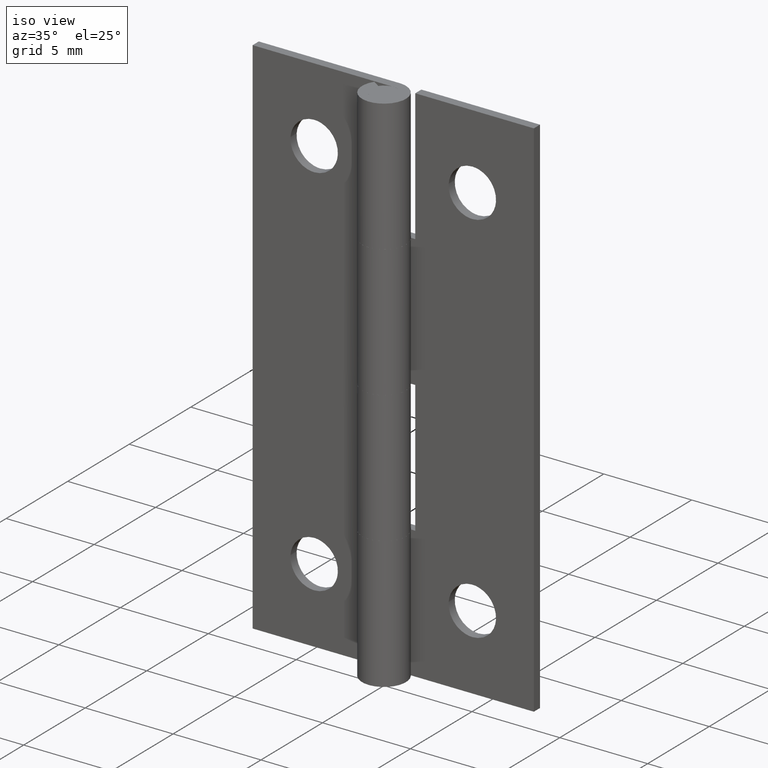
[diagram: clean part render]
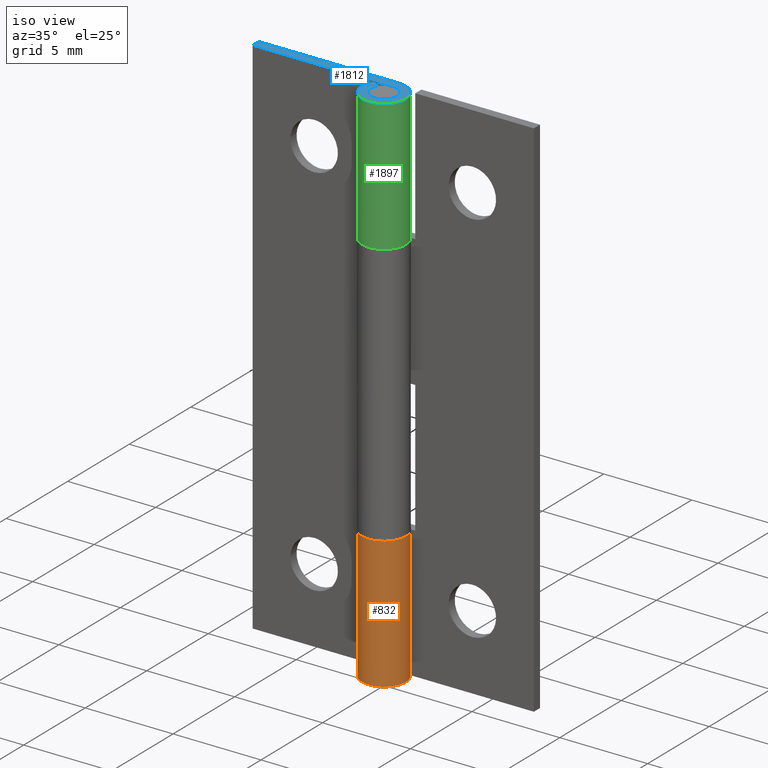
[diagram: same view with three faces highlighted in distinct colors, each labeled with its STEP entity id]
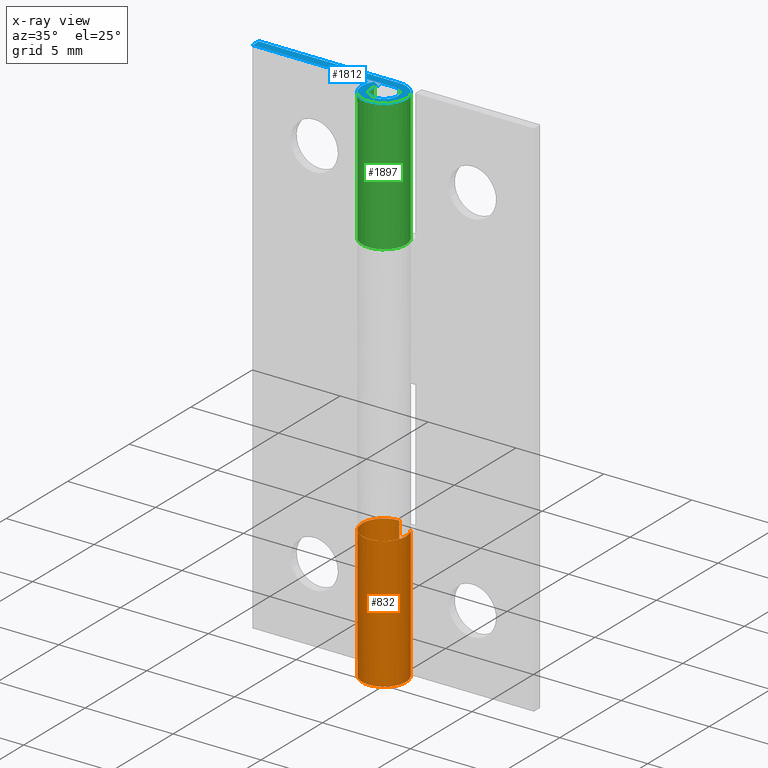
[diagram: x-ray of the same camera — body ghosted, the three highlighted faces saturated]
A machine part, iso view with three faces highlighted in distinct colors.
The next image is the same camera in x-ray (body ghosted, the three faces saturated) — at least one of them is partly hidden behind the body in this view.
Their STEP definitions:

[orange] entity #832 — the highlighted face is a freeform B-spline surface patch.
#535=CARTESIAN_POINT('',(-2.296137E-016,1.250000000000000,7.500000000000000));
#536=VERTEX_POINT('',#535);
#542=CARTESIAN_POINT('',(1.036746278707614,0.698324533140512,7.500000000000000));
#543=VERTEX_POINT('',#542);
#544=CARTESIAN_POINT('',(0.0,1.250000000000000,7.500000000000000));
#545=CARTESIAN_POINT('',(-0.976445220318015,1.250000000000000,7.500000000000000));
#546=CARTESIAN_POINT('',(-1.212821022763166,0.302597367377360,7.500000000000000));
#547=CARTESIAN_POINT('',(-1.449196825208316,-0.644805265245280,7.500000000000000));
#548=CARTESIAN_POINT('',(-0.587194317740882,-1.103495733210065,7.500000000000000));
#549=CARTESIAN_POINT('',(0.274808189726552,-1.562186201174852,7.500000000000000));
#550=CARTESIAN_POINT('',(0.928527495263428,-0.836861213427784,7.500000000000000));
#551=CARTESIAN_POINT('',(1.582246800800304,-0.111536225680718,7.500000000000000));
#552=CARTESIAN_POINT('',(1.036746278707614,0.698324533140512,7.500000000000000));
#560=(BOUNDED_CURVE()B_SPLINE_CURVE(2,(#544,#545,#546,#547,#548,#549,#550,#551,#552),.UNSPECIFIED.,.F.,.U.)B_SPLINE_CURVE_WITH_KNOTS((3,2,2,2,3),(0.0,0.250000000000000,0.500000000000000,0.750000000000000,1.0),.UNSPECIFIED.)CURVE()GEOMETRIC_REPRESENTATION_ITEM()RATIONAL_B_SPLINE_CURVE((1.0,0.788060243224428,1.0,0.788060243224428,1.0,0.788060243224428,1.0,0.788060243224428,1.0))REPRESENTATION_ITEM(''));
#561=EDGE_CURVE('',#536,#543,#560,.T.);
#695=CARTESIAN_POINT('',(-2.296137E-016,1.250000000000000,0.0));
#696=VERTEX_POINT('',#695);
#739=CARTESIAN_POINT('',(1.036746278707614,0.698324533140512,0.0));
#740=VERTEX_POINT('',#739);
#746=CARTESIAN_POINT('',(1.036746278707614,0.698324533140513,0.0));
#747=CARTESIAN_POINT('',(1.582246800800305,-0.111536225680718,0.0));
#748=CARTESIAN_POINT('',(0.928527495263428,-0.836861213427785,0.0));
#749=CARTESIAN_POINT('',(0.274808189726552,-1.562186201174850,0.0));
#750=CARTESIAN_POINT('',(-0.587194317740881,-1.103495733210066,0.0));
#751=CARTESIAN_POINT('',(-1.449196825208317,-0.644805265245280,0.0));
#752=CARTESIAN_POINT('',(-1.212821022763166,0.302597367377361,0.0));
#753=CARTESIAN_POINT('',(-0.976445220318015,1.250000000000000,0.0));
#754=CARTESIAN_POINT('',(0.0,1.250000000000000,0.0));
#762=(BOUNDED_CURVE()B_SPLINE_CURVE(2,(#746,#747,#748,#749,#750,#751,#752,#753,#754),.UNSPECIFIED.,.F.,.U.)B_SPLINE_CURVE_WITH_KNOTS((3,2,2,2,3),(0.0,0.250000000000000,0.500000000000000,0.750000000000000,1.0),.UNSPECIFIED.)CURVE()GEOMETRIC_REPRESENTATION_ITEM()RATIONAL_B_SPLINE_CURVE((1.0,0.788060243224427,1.0,0.788060243224427,1.0,0.788060243224427,1.0,0.788060243224427,1.0))REPRESENTATION_ITEM(''));
#763=EDGE_CURVE('',#740,#696,#762,.T.);
#796=CARTESIAN_POINT('',(0.010908169372966,1.249952403830214,7.687500000000001));
#797=CARTESIAN_POINT('',(0.010908169372966,1.249952403830214,-0.192187500000000));
#798=CARTESIAN_POINT('',(-1.541868327552402,1.263503279027477,7.687500000000000));
#799=CARTESIAN_POINT('',(-1.541868327552402,1.263503279027477,-0.192187500000000));
#800=CARTESIAN_POINT('',(-1.223435315165517,-0.256331873956110,7.687500000000001));
#801=CARTESIAN_POINT('',(-1.223435315165517,-0.256331873956110,-0.192187500000000));
#802=CARTESIAN_POINT('',(-0.905002302778632,-1.776167026939698,7.687500000000000));
#803=CARTESIAN_POINT('',(-0.905002302778632,-1.776167026939698,-0.192187500000000));
#804=CARTESIAN_POINT('',(0.511740393157615,-1.140448056691267,7.687500000000001));
#805=CARTESIAN_POINT('',(0.511740393157615,-1.140448056691267,-0.192187500000000));
#806=CARTESIAN_POINT('',(1.928483089093864,-0.504729086442838,7.687500000000000));
#807=CARTESIAN_POINT('',(1.928483089093864,-0.504729086442838,-0.192187500000000));
#808=CARTESIAN_POINT('',(1.004821075771522,0.743528483439176,7.687500000000001));
#809=CARTESIAN_POINT('',(1.004821075771522,0.743528483439176,-0.192187500000000));
#817=(BOUNDED_SURFACE()B_SPLINE_SURFACE(1,2,((#796,#798,#800,#802,#804,#806,#808),(#797,#799,#801,#803,#805,#807,#809)),.UNSPECIFIED.,.F.,.F.,.U.)B_SPLINE_SURFACE_WITH_KNOTS((2,2),(3,2,2,3),(0.0,7.879687500000002),(0.0,2.393810539874266,4.787621079748531,7.181431619622797),.UNSPECIFIED.)GEOMETRIC_REPRESENTATION_ITEM()RATIONAL_B_SPLINE_SURFACE(((1.0,0.627057105746662,1.0,0.627057105746662,1.0,0.627057105746662,1.0),(1.0,0.627057105746662,1.0,0.627057105746662,1.0,0.627057105746662,1.0)))REPRESENTATION_ITEM('')SURFACE());
#818=ORIENTED_EDGE('',*,*,#561,.F.);
#819=CARTESIAN_POINT('',(-2.296137E-016,1.250000000000000,7.500000000000000));
#820=CARTESIAN_POINT('',(-2.296137E-016,1.250000000000000,0.0));
#821=QUASI_UNIFORM_CURVE('',1,(#819,#820),.UNSPECIFIED.,.F.,.U.);
#822=EDGE_CURVE('',#536,#696,#821,.T.);
#823=ORIENTED_EDGE('',*,*,#822,.T.);
#824=ORIENTED_EDGE('',*,*,#763,.F.);
#825=CARTESIAN_POINT('',(1.036746278707614,0.698324533140512,7.500000000000000));
#826=CARTESIAN_POINT('',(1.036746278707614,0.698324533140512,0.0));
#827=QUASI_UNIFORM_CURVE('',1,(#825,#826),.UNSPECIFIED.,.F.,.U.);
#828=EDGE_CURVE('',#543,#740,#827,.T.);
#829=ORIENTED_EDGE('',*,*,#828,.F.);
#830=EDGE_LOOP('',(#818,#823,#824,#829));
#831=FACE_OUTER_BOUND('',#830,.T.);
#832=ADVANCED_FACE('',(#831),#817,.T.);

[blue] entity #1812 — the highlighted face is a freeform B-spline surface patch.
#1735=CARTESIAN_POINT('',(-8.462023407233360,1.374818699013491,30.0));
#1736=CARTESIAN_POINT('',(1.711741876773793,1.374818699013491,30.0));
#1737=CARTESIAN_POINT('',(-8.462023407233360,-1.373691716124394,30.0));
#1738=CARTESIAN_POINT('',(1.711741876773793,-1.373691716124394,30.0));
#1739=B_SPLINE_SURFACE_WITH_KNOTS('',1,1,((#1735,#1737),(#1736,#1738)),.UNSPECIFIED.,.F.,.F.,.U.,(2,2),(2,2),(0.0,10.173765284007150),(0.0,2.748510415137884),.UNSPECIFIED.);
#1740=CARTESIAN_POINT('',(-8.0,0.750000000000000,30.0));
#1741=VERTEX_POINT('',#1740);
#1742=CARTESIAN_POINT('',(4.592274E-017,0.750000000000000,30.0));
#1743=VERTEX_POINT('',#1742);
#1744=CARTESIAN_POINT('',(-8.0,0.750000000000000,30.0));
#1745=CARTESIAN_POINT('',(4.592274E-017,0.750000000000000,30.0));
#1746=QUASI_UNIFORM_CURVE('',1,(#1744,#1745),.UNSPECIFIED.,.F.,.U.);
#1747=EDGE_CURVE('',#1741,#1743,#1746,.T.);
#1748=ORIENTED_EDGE('',*,*,#1747,.T.);
#1749=CARTESIAN_POINT('',(-0.621369455316239,0.420000000000000,30.0));
#1750=VERTEX_POINT('',#1749);
#1751=CARTESIAN_POINT('',(-0.621369455316239,0.420000000000000,30.0));
#1752=CARTESIAN_POINT('',(-0.949591762138205,-0.065588847649057,30.000000000000007));
#1753=CARTESIAN_POINT('',(-0.557725015508411,-0.501440731369265,30.0));
#1754=CARTESIAN_POINT('',(-0.165858268878616,-0.937292615089473,30.000000000000007));
#1755=CARTESIAN_POINT('',(0.351781181986757,-0.662382064974589,30.0));
#1756=CARTESIAN_POINT('',(0.869420632852130,-0.387471514859705,30.000000000000007));
#1757=CARTESIAN_POINT('',(0.727765947517106,0.181264242570147,30.0));
#1758=CARTESIAN_POINT('',(0.586111262182082,0.750000000000000,30.000000000000007));
#1759=CARTESIAN_POINT('',(0.0,0.750000000000000,30.0));
#1767=(BOUNDED_CURVE()B_SPLINE_CURVE(2,(#1751,#1752,#1753,#1754,#1755,#1756,#1757,#1758,#1759),.UNSPECIFIED.,.F.,.U.)B_SPLINE_CURVE_WITH_KNOTS((3,2,2,2,3),(0.0,0.250000000000000,0.500000000000000,0.750000000000000,1.0),.UNSPECIFIED.)CURVE()GEOMETRIC_REPRESENTATION_ITEM()RATIONAL_B_SPLINE_CURVE((1.0,0.787935802194632,1.0,0.787935802194632,1.0,0.787935802194632,1.0,0.787935802194632,1.0))REPRESENTATION_ITEM(''));
#1768=EDGE_CURVE('',#1750,#1743,#1767,.T.);
#1769=ORIENTED_EDGE('',*,*,#1768,.F.);
#1770=CARTESIAN_POINT('',(-1.035615758860400,0.700000000000000,30.0));
#1771=VERTEX_POINT('',#1770);
#1772=CARTESIAN_POINT('',(-0.621369455316239,0.420000000000000,30.0));
#1773=CARTESIAN_POINT('',(-1.035615758860400,0.700000000000000,30.0));
#1774=QUASI_UNIFORM_CURVE('',1,(#1772,#1773),.UNSPECIFIED.,.F.,.U.);
#1775=EDGE_CURVE('',#1750,#1771,#1774,.T.);
#1776=ORIENTED_EDGE('',*,*,#1775,.T.);
#1777=CARTESIAN_POINT('',(7.653790E-017,1.250000000000000,30.0));
#1778=VERTEX_POINT('',#1777);
#1779=CARTESIAN_POINT('',(-1.035615758860399,0.700000000000000,30.0));
#1780=CARTESIAN_POINT('',(-1.582652936897009,-0.109314746081764,29.999999999999996));
#1781=CARTESIAN_POINT('',(-0.929541692514017,-0.835734552282109,30.0));
#1782=CARTESIAN_POINT('',(-0.276430448131026,-1.562154358482454,29.999999999999996));
#1783=CARTESIAN_POINT('',(0.586301969977929,-1.103970108290981,30.0));
#1784=CARTESIAN_POINT('',(1.449034388086883,-0.645785858099509,29.999999999999996));
#1785=CARTESIAN_POINT('',(1.212943245861843,0.302107070950246,30.0));
#1786=CARTESIAN_POINT('',(0.976852103636803,1.250000000000000,29.999999999999996));
#1787=CARTESIAN_POINT('',(0.0,1.250000000000000,30.0));
#1795=(BOUNDED_CURVE()B_SPLINE_CURVE(2,(#1779,#1780,#1781,#1782,#1783,#1784,#1785,#1786,#1787),.UNSPECIFIED.,.F.,.U.)B_SPLINE_CURVE_WITH_KNOTS((3,2,2,2,3),(0.0,0.250000000000000,0.500000000000000,0.750000000000000,1.0),.UNSPECIFIED.)CURVE()GEOMETRIC_REPRESENTATION_ITEM()RATIONAL_B_SPLINE_CURVE((1.0,0.787935802194632,1.0,0.787935802194632,1.0,0.787935802194632,1.0,0.787935802194632,1.0))REPRESENTATION_ITEM(''));
#1796=EDGE_CURVE('',#1771,#1778,#1795,.T.);
#1797=ORIENTED_EDGE('',*,*,#1796,.T.);
#1798=CARTESIAN_POINT('',(-8.0,1.250000000000000,30.0));
#1799=VERTEX_POINT('',#1798);
#1800=CARTESIAN_POINT('',(7.653790E-017,1.250000000000000,30.0));
#1801=CARTESIAN_POINT('',(-8.0,1.250000000000000,30.0));
#1802=QUASI_UNIFORM_CURVE('',1,(#1800,#1801),.UNSPECIFIED.,.F.,.U.);
#1803=EDGE_CURVE('',#1778,#1799,#1802,.T.);
#1804=ORIENTED_EDGE('',*,*,#1803,.T.);
#1805=CARTESIAN_POINT('',(-8.0,1.250000000000000,30.0));
#1806=CARTESIAN_POINT('',(-8.0,0.750000000000000,30.0));
#1807=QUASI_UNIFORM_CURVE('',1,(#1805,#1806),.UNSPECIFIED.,.F.,.U.);
#1808=EDGE_CURVE('',#1799,#1741,#1807,.T.);
#1809=ORIENTED_EDGE('',*,*,#1808,.T.);
#1810=EDGE_LOOP('',(#1748,#1769,#1776,#1797,#1804,#1809));
#1811=FACE_OUTER_BOUND('',#1810,.T.);
#1812=ADVANCED_FACE('',(#1811),#1739,.F.);

[green] entity #1897 — the highlighted face is a freeform B-spline surface patch.
#1502=CARTESIAN_POINT('',(0.0,1.249999999999972,22.500000000000000));
#1503=VERTEX_POINT('',#1502);
#1509=CARTESIAN_POINT('',(-1.035615758860400,0.700000000000000,22.500000000000000));
#1510=VERTEX_POINT('',#1509);
#1511=CARTESIAN_POINT('',(0.0,1.250000000000000,22.500000000000000));
#1512=CARTESIAN_POINT('',(0.976852103636802,1.250000000000000,22.499999999999993));
#1513=CARTESIAN_POINT('',(1.212943245861843,0.302107070950246,22.500000000000000));
#1514=CARTESIAN_POINT('',(1.449034388086884,-0.645785858099508,22.499999999999993));
#1515=CARTESIAN_POINT('',(0.586301969977929,-1.103970108290981,22.500000000000000));
#1516=CARTESIAN_POINT('',(-0.276430448131025,-1.562154358482454,22.499999999999993));
#1517=CARTESIAN_POINT('',(-0.929541692514017,-0.835734552282109,22.500000000000000));
#1518=CARTESIAN_POINT('',(-1.582652936897008,-0.109314746081764,22.499999999999993));
#1519=CARTESIAN_POINT('',(-1.035615758860399,0.699999999999999,22.500000000000000));
#1527=(BOUNDED_CURVE()B_SPLINE_CURVE(2,(#1511,#1512,#1513,#1514,#1515,#1516,#1517,#1518,#1519),.UNSPECIFIED.,.F.,.U.)B_SPLINE_CURVE_WITH_KNOTS((3,2,2,2,3),(0.0,0.250000000000000,0.500000000000000,0.750000000000000,1.0),.UNSPECIFIED.)CURVE()GEOMETRIC_REPRESENTATION_ITEM()RATIONAL_B_SPLINE_CURVE((1.0,0.787935802194632,1.0,0.787935802194632,1.0,0.787935802194632,1.0,0.787935802194632,1.0))REPRESENTATION_ITEM(''));
#1528=EDGE_CURVE('',#1503,#1510,#1527,.T.);
#1770=CARTESIAN_POINT('',(-1.035615758860400,0.700000000000000,30.0));
#1771=VERTEX_POINT('',#1770);
#1777=CARTESIAN_POINT('',(7.653790E-017,1.250000000000000,30.0));
#1778=VERTEX_POINT('',#1777);
#1779=CARTESIAN_POINT('',(-1.035615758860399,0.700000000000000,30.0));
#1780=CARTESIAN_POINT('',(-1.582652936897009,-0.109314746081764,29.999999999999996));
#1781=CARTESIAN_POINT('',(-0.929541692514017,-0.835734552282109,30.0));
#1782=CARTESIAN_POINT('',(-0.276430448131026,-1.562154358482454,29.999999999999996));
#1783=CARTESIAN_POINT('',(0.586301969977929,-1.103970108290981,30.0));
#1784=CARTESIAN_POINT('',(1.449034388086883,-0.645785858099509,29.999999999999996));
#1785=CARTESIAN_POINT('',(1.212943245861843,0.302107070950246,30.0));
#1786=CARTESIAN_POINT('',(0.976852103636803,1.250000000000000,29.999999999999996));
#1787=CARTESIAN_POINT('',(0.0,1.250000000000000,30.0));
#1795=(BOUNDED_CURVE()B_SPLINE_CURVE(2,(#1779,#1780,#1781,#1782,#1783,#1784,#1785,#1786,#1787),.UNSPECIFIED.,.F.,.U.)B_SPLINE_CURVE_WITH_KNOTS((3,2,2,2,3),(0.0,0.250000000000000,0.500000000000000,0.750000000000000,1.0),.UNSPECIFIED.)CURVE()GEOMETRIC_REPRESENTATION_ITEM()RATIONAL_B_SPLINE_CURVE((1.0,0.787935802194632,1.0,0.787935802194632,1.0,0.787935802194632,1.0,0.787935802194632,1.0))REPRESENTATION_ITEM(''));
#1796=EDGE_CURVE('',#1771,#1778,#1795,.T.);
#1861=CARTESIAN_POINT('',(-1.004821075771521,0.743528483439176,30.187500000000000));
#1862=CARTESIAN_POINT('',(-1.004821075771521,0.743528483439176,22.307812500000001));
#1863=CARTESIAN_POINT('',(-1.950809181486082,-0.534901068653333,30.187500000000000));
#1864=CARTESIAN_POINT('',(-1.950809181486082,-0.534901068653333,22.307812500000001));
#1865=CARTESIAN_POINT('',(-0.485064798854316,-1.152046935203779,30.187500000000000));
#1866=CARTESIAN_POINT('',(-0.485064798854316,-1.152046935203779,22.307812500000001));
#1867=CARTESIAN_POINT('',(0.980679583777450,-1.769192801754226,30.187500000000000));
#1868=CARTESIAN_POINT('',(0.980679583777450,-1.769192801754226,22.307812500000001));
#1869=CARTESIAN_POINT('',(1.234036391396717,-0.199133585084404,30.187500000000000));
#1870=CARTESIAN_POINT('',(1.234036391396717,-0.199133585084404,22.307812500000001));
#1871=CARTESIAN_POINT('',(1.487393199015984,1.370925631585418,30.187500000000000));
#1872=CARTESIAN_POINT('',(1.487393199015984,1.370925631585418,22.307812500000001));
#1873=CARTESIAN_POINT('',(-0.098073869659805,1.246146667166410,30.187500000000000));
#1874=CARTESIAN_POINT('',(-0.098073869659805,1.246146667166410,22.307812500000001));
#1882=(BOUNDED_SURFACE()B_SPLINE_SURFACE(1,2,((#1861,#1863,#1865,#1867,#1869,#1871,#1873),(#1862,#1864,#1866,#1868,#1870,#1872,#1874)),.UNSPECIFIED.,.F.,.F.,.U.)B_SPLINE_SURFACE_WITH_KNOTS((2,2),(3,2,2,3),(0.0,7.879687500000006),(0.0,2.429667178109279,4.859334356218558,7.289001534327838),.UNSPECIFIED.)GEOMETRIC_REPRESENTATION_ITEM()RATIONAL_B_SPLINE_SURFACE(((1.0,0.617951097721073,1.0,0.617951097721073,1.0,0.617951097721073,1.0),(1.0,0.617951097721073,1.0,0.617951097721073,1.0,0.617951097721073,1.0)))REPRESENTATION_ITEM('')SURFACE());
#1883=ORIENTED_EDGE('',*,*,#1528,.F.);
#1884=CARTESIAN_POINT('',(7.653790E-017,1.250000000000000,30.0));
#1885=CARTESIAN_POINT('',(0.0,1.249999999999972,22.500000000000000));
#1886=QUASI_UNIFORM_CURVE('',1,(#1884,#1885),.UNSPECIFIED.,.F.,.U.);
#1887=EDGE_CURVE('',#1778,#1503,#1886,.T.);
#1888=ORIENTED_EDGE('',*,*,#1887,.F.);
#1889=ORIENTED_EDGE('',*,*,#1796,.F.);
#1890=CARTESIAN_POINT('',(-1.035615758860400,0.700000000000000,30.0));
#1891=CARTESIAN_POINT('',(-1.035615758860400,0.700000000000000,22.500000000000000));
#1892=QUASI_UNIFORM_CURVE('',1,(#1890,#1891),.UNSPECIFIED.,.F.,.U.);
#1893=EDGE_CURVE('',#1771,#1510,#1892,.T.);
#1894=ORIENTED_EDGE('',*,*,#1893,.T.);
#1895=EDGE_LOOP('',(#1883,#1888,#1889,#1894));
#1896=FACE_OUTER_BOUND('',#1895,.T.);
#1897=ADVANCED_FACE('',(#1896),#1882,.T.);